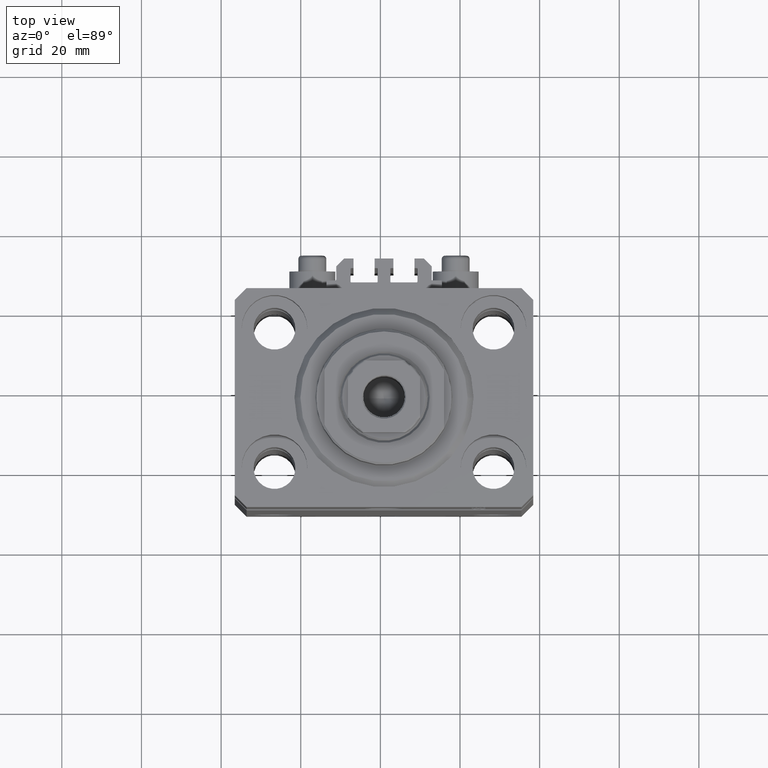
[diagram: clean part render]
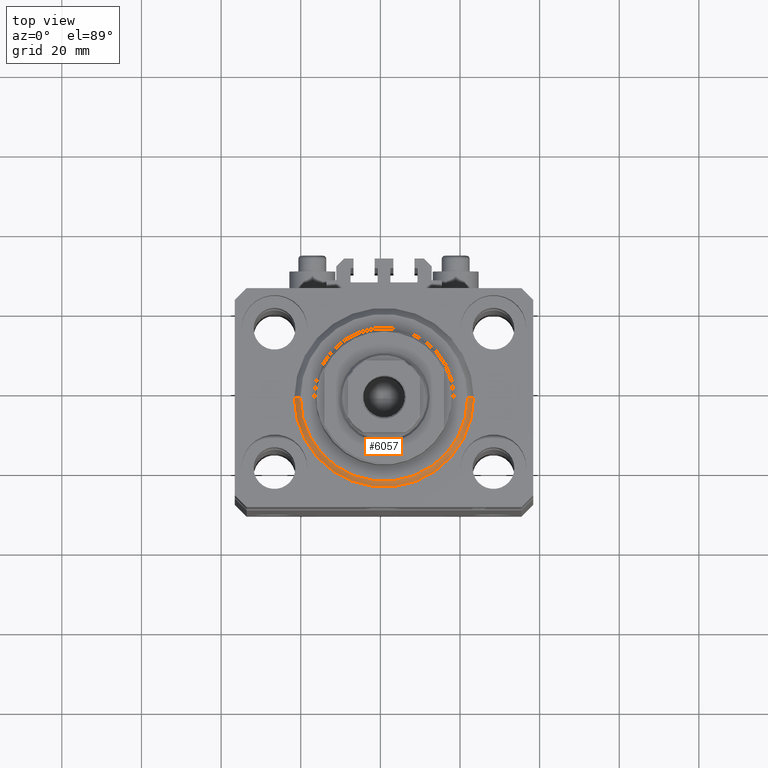
[diagram: same view with one face highlighted and labeled with its STEP entity id]
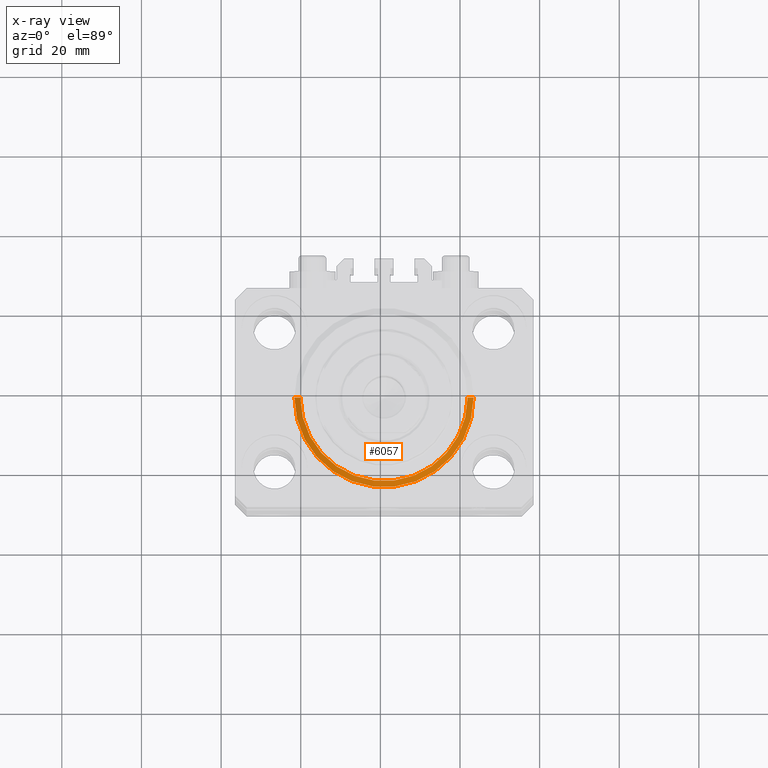
[diagram: x-ray of the same camera — body ghosted, the highlighted face saturated]
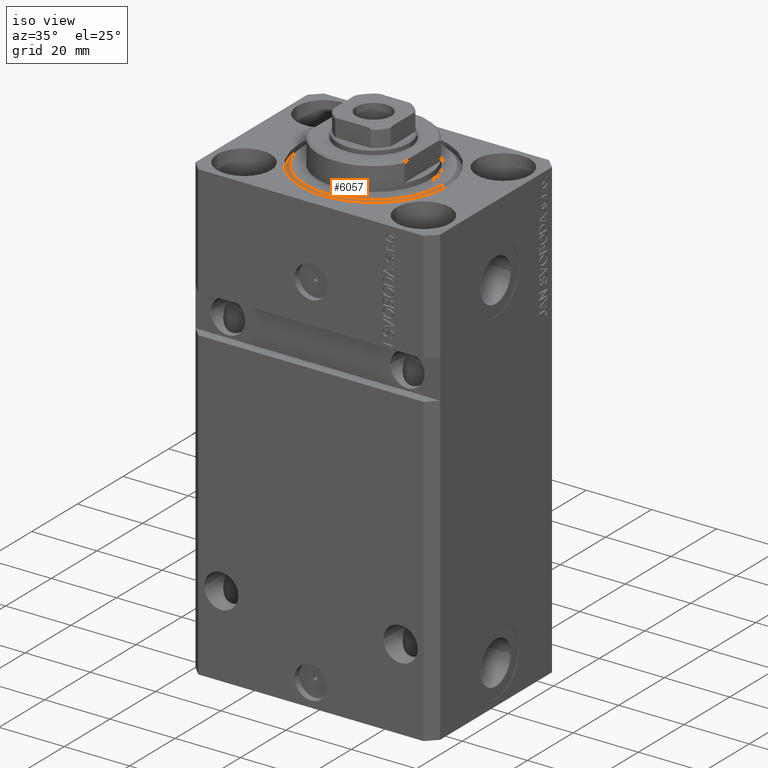
[diagram: same view with one face highlighted and labeled with its STEP entity id]
A machine part, top view. The second image highlights one B-rep face of the part: STEP entity #6057.
The next image is the same camera in x-ray: the body ghosted, the highlighted face saturated — about 0% of this face is hidden behind the body in this view.
A second angle (iso view) of the same face is appended — the face is thin or edge-on in the first view.
In plain terms, the highlighted conical surface has half-angle 45 deg.
Its self-contained STEP definition (entity closure, byte-faithful):
#1265 = CIRCLE ( 'NONE', #38387, 20.99999999999998934 ) ;
#2043 = DIRECTION ( 'NONE',  ( -0.7071067811865500152, 8.659560562354963673E-17, 0.7071067811865451302 ) ) ;
#2718 = VERTEX_POINT ( 'NONE', #23052 ) ;
#3065 = DIRECTION ( 'NONE',  ( 1.000000000000000000, 0.000000000000000000, 0.000000000000000000 ) ) ;
#3318 = LINE ( 'NONE', #32878, #46667 ) ;
#4532 = CARTESIAN_POINT ( 'NONE',  ( 0.000000000000000000, 0.000000000000000000, 0.000000000000000000 ) ) ;
#5052 = VERTEX_POINT ( 'NONE', #11065 ) ;
#5062 = EDGE_CURVE ( 'NONE', #2718, #5052, #3318, .T. ) ;
#5471 = DIRECTION ( 'NONE',  ( 1.000000000000000000, 0.000000000000000000, 0.000000000000000000 ) ) ;
#5477 = CARTESIAN_POINT ( 'NONE',  ( 0.000000000000000000, 0.000000000000000000, 1.500000000000001332 ) ) ;
#6057 = ADVANCED_FACE ( 'NONE', ( #38669 ), #38981, .T. ) ;
#7366 = CIRCLE ( 'NONE', #30605, 22.50000000000000355 ) ;
#9329 = EDGE_CURVE ( 'NONE', #37605, #5052, #7366, .T. ) ;
#10343 = DIRECTION ( 'NONE',  ( 0.7071067811865500152, 0.000000000000000000, 0.7071067811865451302 ) ) ;
#11065 = CARTESIAN_POINT ( 'NONE',  ( 22.50000000000000355, 2.755455298081545172E-15, 1.500000000000001332 ) ) ;
#12667 = AXIS2_PLACEMENT_3D ( 'NONE', #5477, #16634, #46163 ) ;
#14684 = CARTESIAN_POINT ( 'NONE',  ( 0.000000000000000000, 0.000000000000000000, 1.500000000000001332 ) ) ;
#15802 = EDGE_CURVE ( 'NONE', #2718, #45941, #1265, .T. ) ;
#16634 = DIRECTION ( 'NONE',  ( -0.000000000000000000, -0.000000000000000000, 1.000000000000000000 ) ) ;
#19322 = DIRECTION ( 'NONE',  ( -0.000000000000000000, -0.000000000000000000, -1.000000000000000000 ) ) ;
#21139 = CARTESIAN_POINT ( 'NONE',  ( -22.50000000000000355, 0.000000000000000000, 1.500000000000001332 ) ) ;
#21501 = EDGE_LOOP ( 'NONE', ( #47513, #41391, #40577, #31759 ) ) ;
#23052 = CARTESIAN_POINT ( 'NONE',  ( 20.99999999999998934, 0.000000000000000000, 0.000000000000000000 ) ) ;
#24590 = CARTESIAN_POINT ( 'NONE',  ( -22.50000000000000355, 2.755455298081545172E-15, 1.500000000000001332 ) ) ;
#30605 = AXIS2_PLACEMENT_3D ( 'NONE', #14684, #32153, #3065 ) ;
#31139 = LINE ( 'NONE', #24590, #33844 ) ;
#31462 = CARTESIAN_POINT ( 'NONE',  ( -20.99999999999998934, 2.663606788145492628E-15, 0.000000000000000000 ) ) ;
#31759 = ORIENTED_EDGE ( 'NONE', *, *, #9329, .F. ) ;
#32153 = DIRECTION ( 'NONE',  ( -0.000000000000000000, -0.000000000000000000, 1.000000000000000000 ) ) ;
#32808 = EDGE_CURVE ( 'NONE', #45941, #37605, #31139, .T. ) ;
#32878 = CARTESIAN_POINT ( 'NONE',  ( 22.50000000000000355, 0.000000000000000000, 1.500000000000001332 ) ) ;
#33844 = VECTOR ( 'NONE', #2043, 1000.000000000000114 ) ;
#37605 = VERTEX_POINT ( 'NONE', #21139 ) ;
#38387 = AXIS2_PLACEMENT_3D ( 'NONE', #4532, #19322, #5471 ) ;
#38669 = FACE_OUTER_BOUND ( 'NONE', #21501, .T. ) ;
#38981 = CONICAL_SURFACE ( 'NONE', #12667, 22.50000000000000355, 0.7853981633974517207 ) ;
#40577 = ORIENTED_EDGE ( 'NONE', *, *, #5062, .T. ) ;
#41391 = ORIENTED_EDGE ( 'NONE', *, *, #15802, .F. ) ;
#45941 = VERTEX_POINT ( 'NONE', #31462 ) ;
#46163 = DIRECTION ( 'NONE',  ( 1.000000000000000000, 0.000000000000000000, 0.000000000000000000 ) ) ;
#46667 = VECTOR ( 'NONE', #10343, 1000.000000000000114 ) ;
#47513 = ORIENTED_EDGE ( 'NONE', *, *, #32808, .F. ) ;